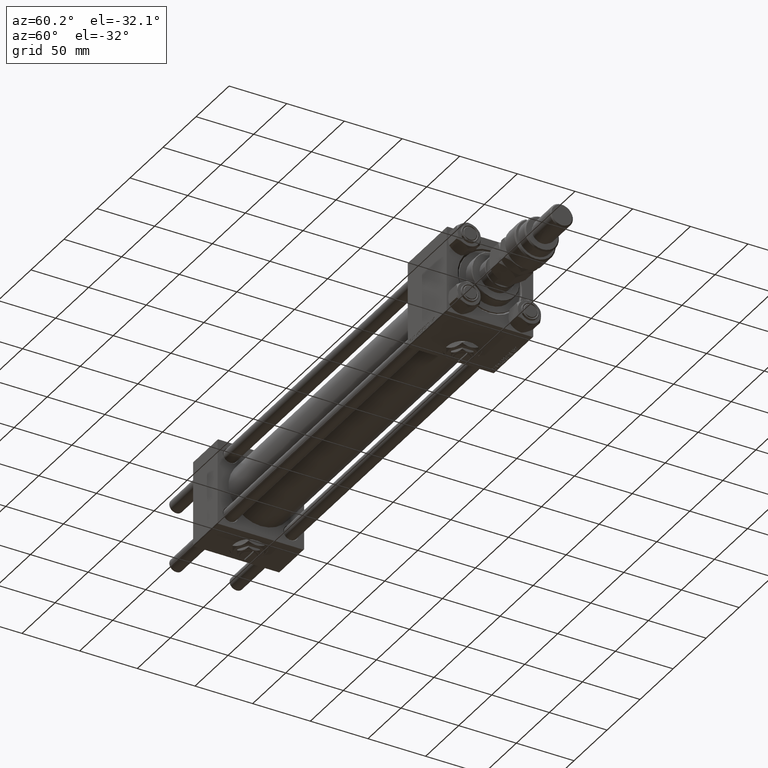
[diagram: clean part render]
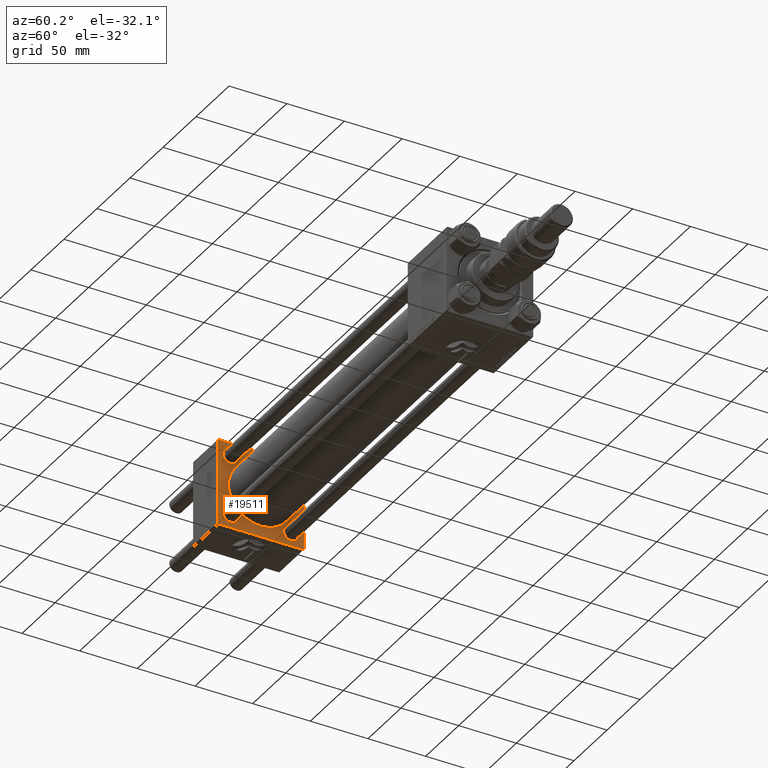
[diagram: same view with one face highlighted and labeled with its STEP entity id]
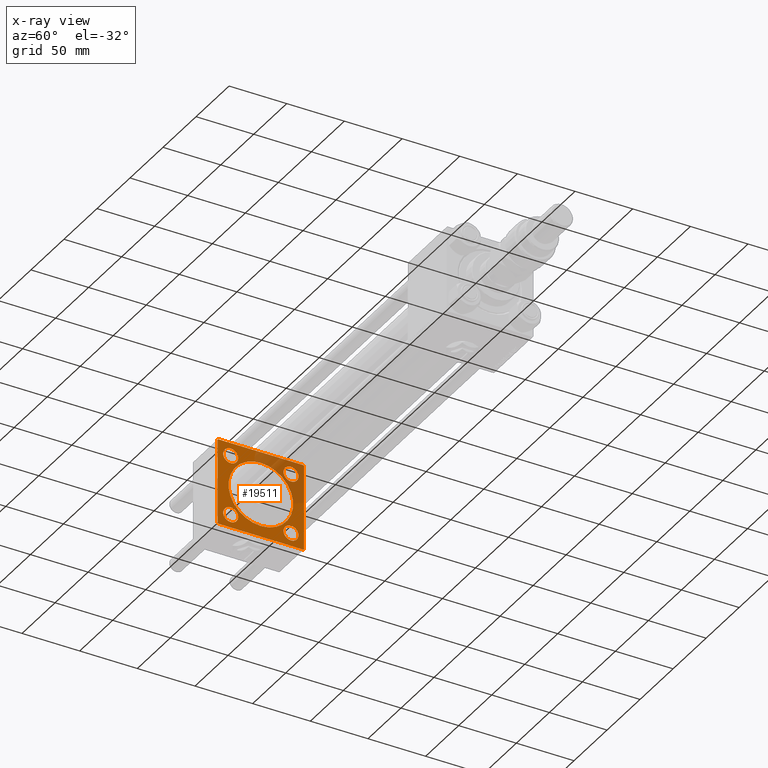
[diagram: x-ray of the same camera — body ghosted, the highlighted face saturated]
A machine part, auxiliary view. The second image highlights one B-rep face of the part: STEP entity #19511.
The next image is the same camera in x-ray: the body ghosted, the highlighted face saturated — about 26% of this face is hidden behind the body in this view.
In plain terms, the highlighted planar face has unit normal (-1, 0, 0).
Its self-contained STEP definition (entity closure, byte-faithful):
#411 = DIRECTION ( 'NONE',  ( 0.000000000000000000, 0.000000000000000000, 1.000000000000000000 ) ) ;
#491 = LINE ( 'NONE', #17325, #3668 ) ;
#668 = CARTESIAN_POINT ( 'NONE',  ( 37.00000000000000000, -26.14999999999999147, -26.15000000000000924 ) ) ;
#673 = PLANE ( 'NONE',  #2576 ) ;
#928 = DIRECTION ( 'NONE',  ( 0.000000000000000000, 0.000000000000000000, 1.000000000000000000 ) ) ;
#964 = VECTOR ( 'NONE', #29145, 1000.000000000000114 ) ;
#2247 = ORIENTED_EDGE ( 'NONE', *, *, #33385, .T. ) ;
#2397 = EDGE_CURVE ( 'NONE', #36632, #30471, #31314, .T. ) ;
#2576 = AXIS2_PLACEMENT_3D ( 'NONE', #13645, #52029, #17506 ) ;
#2592 = VERTEX_POINT ( 'NONE', #42861 ) ;
#3420 = DIRECTION ( 'NONE',  ( 0.000000000000000000, 0.000000000000000000, 1.000000000000000000 ) ) ;
#3668 = VECTOR ( 'NONE', #30314, 1000.000000000000000 ) ;
#3713 = DIRECTION ( 'NONE',  ( 0.000000000000000000, 9.251858538542971581E-17, -1.000000000000000000 ) ) ;
#4017 = VERTEX_POINT ( 'NONE', #8975 ) ;
#4514 = ORIENTED_EDGE ( 'NONE', *, *, #2397, .T. ) ;
#4577 = CARTESIAN_POINT ( 'NONE',  ( 37.00000000000000000, 26.14999999999999858, -32.65000000000011937 ) ) ;
#4813 = FACE_BOUND ( 'NONE', #19163, .T. ) ;
#4874 = CIRCLE ( 'NONE', #46320, 6.500000000000064837 ) ;
#4887 = CARTESIAN_POINT ( 'NONE',  ( 37.00000000000000000, -26.14999999999999147, -32.65000000000006963 ) ) ;
#5148 = CIRCLE ( 'NONE', #53663, 6.500000000000113687 ) ;
#5276 = LINE ( 'NONE', #22402, #45108 ) ;
#5361 = DIRECTION ( 'NONE',  ( -1.000000000000000000, 0.000000000000000000, -0.000000000000000000 ) ) ;
#5715 = ORIENTED_EDGE ( 'NONE', *, *, #8266, .T. ) ;
#6189 = DIRECTION ( 'NONE',  ( 0.000000000000000000, 0.000000000000000000, 1.000000000000000000 ) ) ;
#6202 = ORIENTED_EDGE ( 'NONE', *, *, #52655, .T. ) ;
#6467 = VECTOR ( 'NONE', #3713, 1000.000000000000000 ) ;
#6763 = LINE ( 'NONE', #36313, #6467 ) ;
#6969 = CARTESIAN_POINT ( 'NONE',  ( 37.00000000000000000, 37.49999999999999289, 37.50000000000000000 ) ) ;
#8045 = VERTEX_POINT ( 'NONE', #10757 ) ;
#8090 = VECTOR ( 'NONE', #29552, 1000.000000000000000 ) ;
#8266 = EDGE_CURVE ( 'NONE', #4017, #33183, #5148, .T. ) ;
#8368 = EDGE_CURVE ( 'NONE', #25831, #23330, #39534, .T. ) ;
#8605 = CARTESIAN_POINT ( 'NONE',  ( 37.00000000000000000, 26.14999999999999858, 26.15000000000000213 ) ) ;
#8613 = DIRECTION ( 'NONE',  ( -1.000000000000000000, 0.000000000000000000, -0.000000000000000000 ) ) ;
#8975 = CARTESIAN_POINT ( 'NONE',  ( 37.00000000000000000, 26.14999999999999858, -19.64999999999988844 ) ) ;
#9312 = ORIENTED_EDGE ( 'NONE', *, *, #44614, .T. ) ;
#10757 = CARTESIAN_POINT ( 'NONE',  ( 37.00000000000000000, -26.14999999999999147, 19.64999999999994529 ) ) ;
#10807 = CARTESIAN_POINT ( 'NONE',  ( 37.00000000000000000, -26.14999999999999147, -19.64999999999995239 ) ) ;
#11067 = CARTESIAN_POINT ( 'NONE',  ( 37.00000000000000000, -37.00000000000000711, 37.49999999999999289 ) ) ;
#11099 = CARTESIAN_POINT ( 'NONE',  ( 37.00000000000000000, 36.99999999999997868, -37.50000000000000000 ) ) ;
#12257 = CARTESIAN_POINT ( 'NONE',  ( 36.99999999999997868, 0.000000000000000000, 0.000000000000000000 ) ) ;
#12799 = EDGE_CURVE ( 'NONE', #31441, #25044, #42296, .T. ) ;
#13645 = CARTESIAN_POINT ( 'NONE',  ( 37.00000000000000000, 0.000000000000000000, 0.000000000000000000 ) ) ;
#14116 = DIRECTION ( 'NONE',  ( 0.000000000000000000, -1.000000000000000000, -9.251858538542972814E-17 ) ) ;
#14537 = CARTESIAN_POINT ( 'NONE',  ( 37.00000000000000000, 26.14999999999999858, 26.15000000000000213 ) ) ;
#15361 = DIRECTION ( 'NONE',  ( -1.000000000000000000, 0.000000000000000000, -0.000000000000000000 ) ) ;
#15705 = DIRECTION ( 'NONE',  ( 0.000000000000000000, 0.000000000000000000, 1.000000000000000000 ) ) ;
#15988 = ORIENTED_EDGE ( 'NONE', *, *, #47256, .F. ) ;
#16051 = AXIS2_PLACEMENT_3D ( 'NONE', #39612, #5361, #6189 ) ;
#16172 = DIRECTION ( 'NONE',  ( 1.000000000000000000, -0.000000000000000000, 0.000000000000000000 ) ) ;
#16471 = DIRECTION ( 'NONE',  ( -1.000000000000000000, 0.000000000000000000, -0.000000000000000000 ) ) ;
#16710 = CARTESIAN_POINT ( 'NONE',  ( 36.99999999999997868, 0.000000000000000000, 0.000000000000000000 ) ) ;
#16890 = CIRCLE ( 'NONE', #23954, 6.500000000000119904 ) ;
#17325 = CARTESIAN_POINT ( 'NONE',  ( 37.00000000000000000, -37.00000000000002132, -37.50000000000000711 ) ) ;
#17506 = DIRECTION ( 'NONE',  ( -0.000000000000000000, 0.000000000000000000, 1.000000000000000000 ) ) ;
#17772 = FACE_OUTER_BOUND ( 'NONE', #53895, .T. ) ;
#17870 = VECTOR ( 'NONE', #35980, 1000.000000000000000 ) ;
#18269 = EDGE_LOOP ( 'NONE', ( #27975, #5715 ) ) ;
#18476 = AXIS2_PLACEMENT_3D ( 'NONE', #16710, #16172, #411 ) ;
#18707 = CIRCLE ( 'NONE', #16051, 6.500000000000064837 ) ;
#19163 = EDGE_LOOP ( 'NONE', ( #34571, #24791 ) ) ;
#19284 = CARTESIAN_POINT ( 'NONE',  ( 37.00000000000000000, 37.49999999999999289, 37.00000000000000000 ) ) ;
#19511 = ADVANCED_FACE ( 'NONE', ( #4813, #47343, #43739, #38511, #26606, #17772 ), #673, .F. ) ;
#20710 = VERTEX_POINT ( 'NONE', #45357 ) ;
#20767 = DIRECTION ( 'NONE',  ( -1.000000000000000000, 0.000000000000000000, -0.000000000000000000 ) ) ;
#20820 = CARTESIAN_POINT ( 'NONE',  ( 37.00000000000000000, -37.50000000000000711, 36.99999999999999289 ) ) ;
#20942 = CARTESIAN_POINT ( 'NONE',  ( 37.00000000000000000, -26.14999999999999147, -26.15000000000000924 ) ) ;
#21116 = CARTESIAN_POINT ( 'NONE',  ( 37.00000000000000000, 37.49999999999999289, -36.99999999999998579 ) ) ;
#21703 = CARTESIAN_POINT ( 'NONE',  ( 37.00000000000000000, 37.49999999999999289, -36.99999999999998579 ) ) ;
#22402 = CARTESIAN_POINT ( 'NONE',  ( 37.00000000000000000, 37.49999999999999289, -37.50000000000000000 ) ) ;
#22479 = CARTESIAN_POINT ( 'NONE',  ( 37.00000000000000000, 36.99999999999999289, 37.50000000000000000 ) ) ;
#22710 = EDGE_CURVE ( 'NONE', #23330, #25831, #48540, .T. ) ;
#22835 = CARTESIAN_POINT ( 'NONE',  ( 36.99999999999997868, 0.000000000000000000, 28.00000000000000000 ) ) ;
#23110 = ORIENTED_EDGE ( 'NONE', *, *, #28067, .F. ) ;
#23330 = VERTEX_POINT ( 'NONE', #4887 ) ;
#23954 = AXIS2_PLACEMENT_3D ( 'NONE', #14537, #15361, #48517 ) ;
#24045 = CARTESIAN_POINT ( 'NONE',  ( 37.00000000000000000, 26.14999999999999858, 32.65000000000012648 ) ) ;
#24483 = EDGE_CURVE ( 'NONE', #54254, #46012, #29357, .T. ) ;
#24791 = ORIENTED_EDGE ( 'NONE', *, *, #8368, .T. ) ;
#25044 = VERTEX_POINT ( 'NONE', #31605 ) ;
#25693 = VECTOR ( 'NONE', #43614, 1000.000000000000114 ) ;
#25712 = ORIENTED_EDGE ( 'NONE', *, *, #42168, .T. ) ;
#25831 = VERTEX_POINT ( 'NONE', #10807 ) ;
#25937 = ORIENTED_EDGE ( 'NONE', *, *, #29716, .T. ) ;
#26606 = FACE_BOUND ( 'NONE', #27279, .T. ) ;
#27079 = VERTEX_POINT ( 'NONE', #24045 ) ;
#27279 = EDGE_LOOP ( 'NONE', ( #44865, #29035 ) ) ;
#27785 = CIRCLE ( 'NONE', #35752, 6.500000000000119904 ) ;
#27975 = ORIENTED_EDGE ( 'NONE', *, *, #46639, .T. ) ;
#28067 = EDGE_CURVE ( 'NONE', #41716, #20710, #5276, .T. ) ;
#28094 = DIRECTION ( 'NONE',  ( 0.000000000000000000, 0.000000000000000000, 1.000000000000000000 ) ) ;
#28432 = AXIS2_PLACEMENT_3D ( 'NONE', #32501, #16471, #28094 ) ;
#28694 = DIRECTION ( 'NONE',  ( -1.000000000000000000, 0.000000000000000000, -0.000000000000000000 ) ) ;
#29035 = ORIENTED_EDGE ( 'NONE', *, *, #39430, .F. ) ;
#29145 = DIRECTION ( 'NONE',  ( -0.000000000000000000, 0.7071067811865474617, 0.7071067811865474617 ) ) ;
#29340 = DIRECTION ( 'NONE',  ( 0.000000000000000000, 0.000000000000000000, 1.000000000000000000 ) ) ;
#29357 = LINE ( 'NONE', #43071, #25693 ) ;
#29552 = DIRECTION ( 'NONE',  ( 0.000000000000000000, -1.000000000000000000, -9.251858538542971581E-17 ) ) ;
#29716 = EDGE_CURVE ( 'NONE', #49781, #8045, #18707, .T. ) ;
#30314 = DIRECTION ( 'NONE',  ( 0.000000000000000000, 0.7071067811865524577, -0.7071067811865426878 ) ) ;
#30471 = VERTEX_POINT ( 'NONE', #50242 ) ;
#30768 = DIRECTION ( 'NONE',  ( -1.000000000000000000, 0.000000000000000000, -0.000000000000000000 ) ) ;
#31314 = LINE ( 'NONE', #22479, #40183 ) ;
#31441 = VERTEX_POINT ( 'NONE', #22835 ) ;
#31605 = CARTESIAN_POINT ( 'NONE',  ( 36.99999999999997868, 3.429011037612589276E-15, -28.00000000000000000 ) ) ;
#32501 = CARTESIAN_POINT ( 'NONE',  ( 37.00000000000000000, 26.14999999999999858, -26.15000000000000213 ) ) ;
#32830 = CARTESIAN_POINT ( 'NONE',  ( 37.00000000000000000, 26.14999999999999858, -26.15000000000000213 ) ) ;
#32959 = DIRECTION ( 'NONE',  ( 1.000000000000000000, -0.000000000000000000, 0.000000000000000000 ) ) ;
#33183 = VERTEX_POINT ( 'NONE', #4577 ) ;
#33385 = EDGE_CURVE ( 'NONE', #46012, #42437, #6763, .T. ) ;
#34090 = LINE ( 'NONE', #21116, #964 ) ;
#34275 = DIRECTION ( 'NONE',  ( 0.000000000000000000, 0.000000000000000000, 1.000000000000000000 ) ) ;
#34571 = ORIENTED_EDGE ( 'NONE', *, *, #22710, .T. ) ;
#35046 = LINE ( 'NONE', #51902, #8090 ) ;
#35616 = ORIENTED_EDGE ( 'NONE', *, *, #40660, .T. ) ;
#35752 = AXIS2_PLACEMENT_3D ( 'NONE', #8605, #20767, #34275 ) ;
#35980 = DIRECTION ( 'NONE',  ( 0.000000000000000000, 0.000000000000000000, -1.000000000000000000 ) ) ;
#36246 = LINE ( 'NONE', #6969, #17870 ) ;
#36313 = CARTESIAN_POINT ( 'NONE',  ( 37.00000000000000000, -37.50000000000000711, 37.49999999999999289 ) ) ;
#36632 = VERTEX_POINT ( 'NONE', #19284 ) ;
#37188 = EDGE_CURVE ( 'NONE', #8045, #49781, #4874, .T. ) ;
#38511 = FACE_BOUND ( 'NONE', #50683, .T. ) ;
#38671 = AXIS2_PLACEMENT_3D ( 'NONE', #20942, #46620, #54644 ) ;
#39430 = EDGE_CURVE ( 'NONE', #25044, #31441, #44673, .T. ) ;
#39534 = CIRCLE ( 'NONE', #38671, 6.500000000000057732 ) ;
#39612 = CARTESIAN_POINT ( 'NONE',  ( 37.00000000000000000, -26.14999999999999147, 26.15000000000000924 ) ) ;
#40183 = VECTOR ( 'NONE', #43474, 1000.000000000000114 ) ;
#40660 = EDGE_CURVE ( 'NONE', #41716, #51067, #34090, .T. ) ;
#41237 = EDGE_CURVE ( 'NONE', #30471, #54254, #35046, .T. ) ;
#41716 = VERTEX_POINT ( 'NONE', #11099 ) ;
#42168 = EDGE_CURVE ( 'NONE', #42437, #20710, #491, .T. ) ;
#42296 = CIRCLE ( 'NONE', #18476, 28.00000000000000000 ) ;
#42437 = VERTEX_POINT ( 'NONE', #42496 ) ;
#42496 = CARTESIAN_POINT ( 'NONE',  ( 37.00000000000000000, -37.50000000000000000, -37.00000000000003553 ) ) ;
#42757 = CARTESIAN_POINT ( 'NONE',  ( 37.00000000000000000, -26.14999999999999147, 32.65000000000007674 ) ) ;
#42861 = CARTESIAN_POINT ( 'NONE',  ( 37.00000000000000000, 26.14999999999999858, 19.64999999999988489 ) ) ;
#43071 = CARTESIAN_POINT ( 'NONE',  ( 37.00000000000000000, -37.50000000000000711, 36.99999999999999289 ) ) ;
#43474 = DIRECTION ( 'NONE',  ( 0.000000000000000000, -0.7071067811865474617, 0.7071067811865474617 ) ) ;
#43614 = DIRECTION ( 'NONE',  ( -0.000000000000000000, -0.7071067811865474617, -0.7071067811865474617 ) ) ;
#43739 = FACE_BOUND ( 'NONE', #44192, .T. ) ;
#44192 = EDGE_LOOP ( 'NONE', ( #44331, #25937 ) ) ;
#44331 = ORIENTED_EDGE ( 'NONE', *, *, #37188, .T. ) ;
#44614 = EDGE_CURVE ( 'NONE', #27079, #2592, #16890, .T. ) ;
#44673 = CIRCLE ( 'NONE', #48176, 28.00000000000000000 ) ;
#44865 = ORIENTED_EDGE ( 'NONE', *, *, #12799, .F. ) ;
#45108 = VECTOR ( 'NONE', #14116, 1000.000000000000000 ) ;
#45312 = ORIENTED_EDGE ( 'NONE', *, *, #41237, .T. ) ;
#45357 = CARTESIAN_POINT ( 'NONE',  ( 37.00000000000000000, -37.00000000000002132, -37.50000000000000711 ) ) ;
#46012 = VERTEX_POINT ( 'NONE', #20820 ) ;
#46320 = AXIS2_PLACEMENT_3D ( 'NONE', #51413, #8613, #29340 ) ;
#46620 = DIRECTION ( 'NONE',  ( -1.000000000000000000, 0.000000000000000000, -0.000000000000000000 ) ) ;
#46639 = EDGE_CURVE ( 'NONE', #33183, #4017, #52228, .T. ) ;
#47256 = EDGE_CURVE ( 'NONE', #36632, #51067, #36246, .T. ) ;
#47343 = FACE_BOUND ( 'NONE', #18269, .T. ) ;
#48176 = AXIS2_PLACEMENT_3D ( 'NONE', #12257, #32959, #3420 ) ;
#48517 = DIRECTION ( 'NONE',  ( 0.000000000000000000, 0.000000000000000000, 1.000000000000000000 ) ) ;
#48540 = CIRCLE ( 'NONE', #49455, 6.500000000000057732 ) ;
#49455 = AXIS2_PLACEMENT_3D ( 'NONE', #668, #30768, #928 ) ;
#49781 = VERTEX_POINT ( 'NONE', #42757 ) ;
#50118 = ORIENTED_EDGE ( 'NONE', *, *, #24483, .T. ) ;
#50242 = CARTESIAN_POINT ( 'NONE',  ( 37.00000000000000000, 36.99999999999999289, 37.50000000000000000 ) ) ;
#50683 = EDGE_LOOP ( 'NONE', ( #6202, #9312 ) ) ;
#51067 = VERTEX_POINT ( 'NONE', #21703 ) ;
#51413 = CARTESIAN_POINT ( 'NONE',  ( 37.00000000000000000, -26.14999999999999147, 26.15000000000000924 ) ) ;
#51902 = CARTESIAN_POINT ( 'NONE',  ( 37.00000000000000000, 37.49999999999999289, 37.50000000000000000 ) ) ;
#52029 = DIRECTION ( 'NONE',  ( -1.000000000000000000, 0.000000000000000000, -0.000000000000000000 ) ) ;
#52228 = CIRCLE ( 'NONE', #28432, 6.500000000000113687 ) ;
#52655 = EDGE_CURVE ( 'NONE', #2592, #27079, #27785, .T. ) ;
#53663 = AXIS2_PLACEMENT_3D ( 'NONE', #32830, #28694, #15705 ) ;
#53895 = EDGE_LOOP ( 'NONE', ( #23110, #35616, #15988, #4514, #45312, #50118, #2247, #25712 ) ) ;
#54254 = VERTEX_POINT ( 'NONE', #11067 ) ;
#54644 = DIRECTION ( 'NONE',  ( 0.000000000000000000, 0.000000000000000000, 1.000000000000000000 ) ) ;